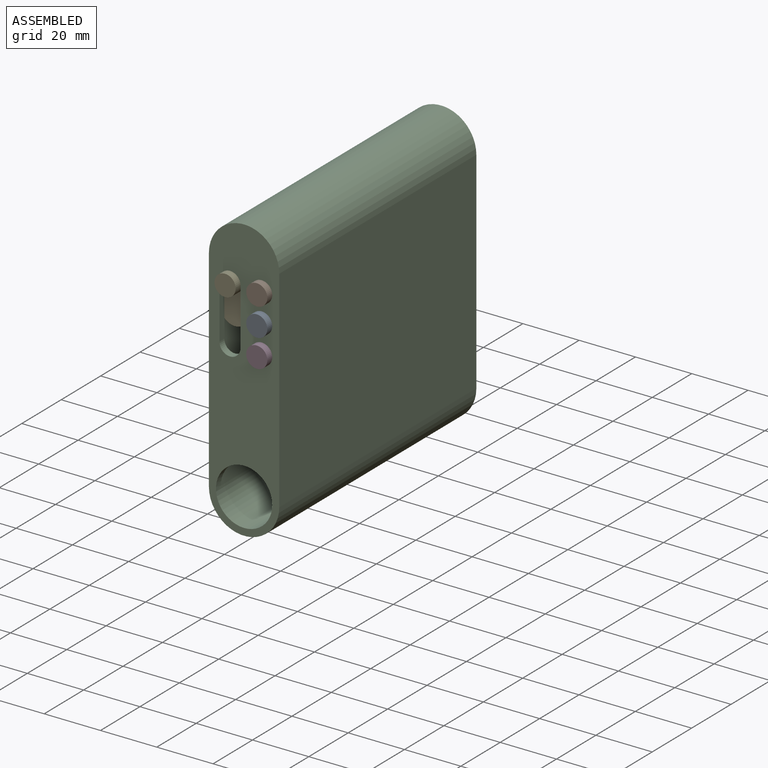
[diagram: assembled view]
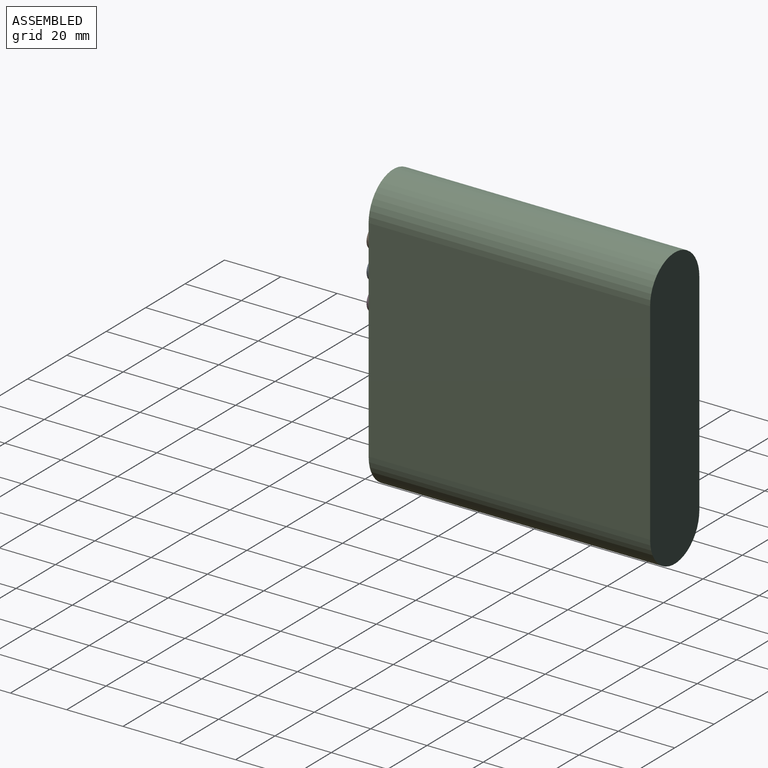
[diagram: assembled view, second angle]
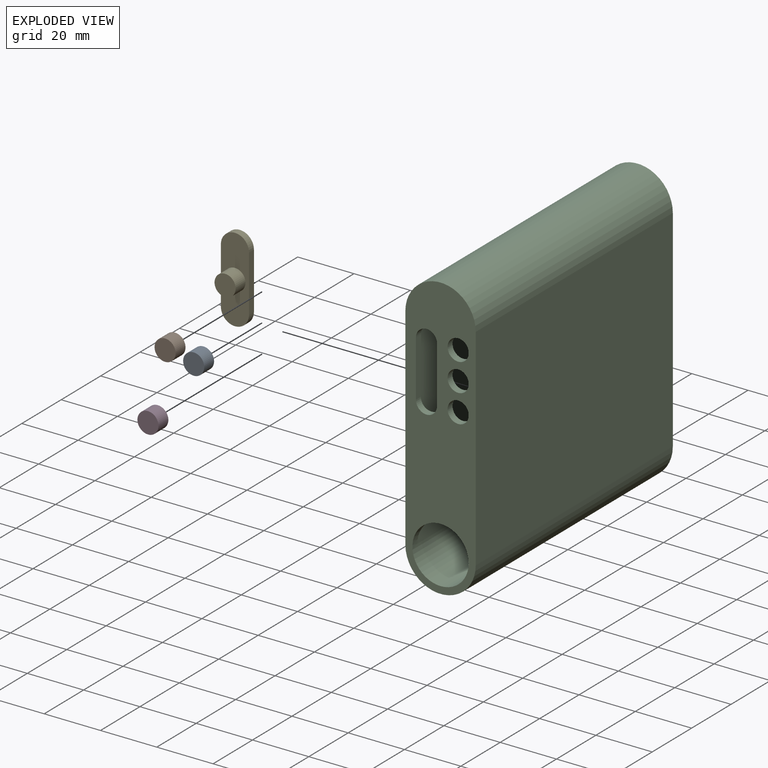
[diagram: exploded view]
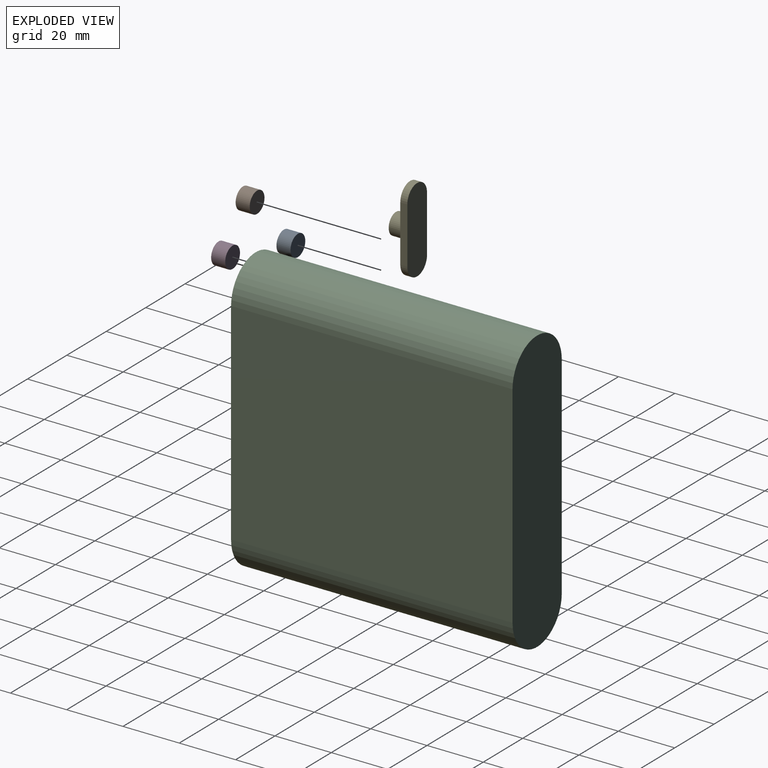
[diagram: exploded view, second angle]
ASSEMBLY  parts=5 mates=4
PART A: 3 faces, bbox 7.5x7.5x5 mm
  f0: cylinder r=3.75mm len=7.5mm, axis (0,0,-1), area 117.8mm2, adj f1,f2
  f1: plane 7.5x7.5mm, normal (0,0,1), area 44.2mm2, adj f0
  f2: plane 7.5x7.5mm, normal (0,0,-1), area 44.2mm2, adj f0
PART B: 3 faces, bbox 7.5x7.5x5 mm
  f0: cylinder r=3.75mm len=7.5mm, axis (0,0,-1), area 117.8mm2, adj f1,f2
  f1: plane 7.5x7.5mm, normal (0,0,1), area 44.2mm2, adj f0
  f2: plane 7.5x7.5mm, normal (0,0,-1), area 44.2mm2, adj f0
PART C: 19 faces, bbox 25x100x100 mm
  f0: plane 85x20mm, normal (0,1,0), area 1173.3mm2, adj f1,f2,f3,f4,f6,f7,f8,f9
  f1: cylinder r=10mm len=95mm, axis (0,1,0), area 2984.5mm2, adj f0,f2,f4,f5
  f2: plane 95x75mm, normal (1,0,0), area 7125mm2, adj f0,f1,f3,f5
  f3: cylinder r=10mm len=97.5mm, axis (0,1,0), area 3141.6mm2, adj f0,f2,f4,f5,f13
  f4: plane 95x75mm, normal (-1,0,0), area 7125mm2, adj f0,f1,f3,f5
  f5: plane 95x20mm, normal (0,-1,0), area 1814.2mm2, adj f1,f2,f3,f4
  f6: plane 20x2.5mm, normal (-1,0,0), area 50mm2, adj f0,f7,f9,f13
  f7: cylinder r=3.75mm len=7.5mm, axis (0,-1,0), area 29.5mm2, adj f0,f6,f8,f13
  f8: plane 20x2.5mm, normal (1,0,0), area 50mm2, adj f0,f7,f9,f13
  f9: cylinder r=3.75mm len=7.5mm, axis (0,-1,0), area 29.5mm2, adj f0,f6,f8,f13
  f10: cylinder r=3.75mm len=7.5mm, axis (0,-1,0), area 58.9mm2, adj f0,f13
  f11: cylinder r=3.75mm len=7.5mm, axis (0,-1,0), area 58.9mm2, adj f0,f13
  f12: cylinder r=3.75mm len=7.5mm, axis (0,-1,0), area 58.9mm2, adj f0,f13
  f13: plane 100x25mm, normal (0,-1,0), area 1725mm2, adj f3,f6,f7,f8,f9,f10,f11,f12
  f14: cylinder r=12.5mm len=100mm, axis (0,1,0), area 3927mm2, adj f13,f15,f17,f18
  f15: plane 100x75mm, normal (-1,0,0), area 7500mm2, adj f13,f14,f16,f18
  f16: cylinder r=12.5mm len=100mm, axis (0,1,0), area 3927mm2, adj f13,f15,f17,f18
  f17: plane 100x75mm, normal (1,0,0), area 7500mm2, adj f13,f14,f16,f18
  f18: plane 100x25mm, normal (0,1,0), area 2365.9mm2, adj f14,f15,f16,f17
PART D: 3 faces, bbox 7.5x7.5x5 mm
  f0: cylinder r=3.75mm len=7.5mm, axis (0,0,-1), area 117.8mm2, adj f1,f2
  f1: plane 7.5x7.5mm, normal (0,0,1), area 44.2mm2, adj f0
  f2: plane 7.5x7.5mm, normal (0,0,-1), area 44.2mm2, adj f0
PART E: 8 faces, bbox 30x10x7.5 mm
  f0: cylinder r=5mm len=10mm, axis (0,0,1), area 39.3mm2, adj f1,f3,f4,f5
  f1: plane 20x2.5mm, normal (0,1,0), area 50mm2, adj f0,f2,f4,f5
  f2: cylinder r=5mm len=10mm, axis (0,0,1), area 39.3mm2, adj f1,f3,f4,f5
  f3: plane 20x2.5mm, normal (0,-1,0), area 50mm2, adj f0,f2,f4,f5
  f4: plane 30x10mm, normal (0,0,-1), area 278.5mm2, adj f0,f1,f2,f3
  f5: plane 30x10mm, normal (0,0,1), area 234.4mm2, adj f0,f1,f2,f3,f6
  f6: cylinder r=3.75mm len=7.5mm, axis (0,0,-1), area 117.8mm2, adj f5,f7
  f7: plane 7.5x7.5mm, normal (0,0,1), area 44.2mm2, adj f6
PLACE A rot(axis=(1,0,0),90deg) t=(56.44,-47.5,-16.37)mm
PLACE B rot(axis=(1,0,0),90deg) t=(34.88,-47.5,-8.24)mm
PLACE C at identity fixed
PLACE D rot(axis=(1,0,0),90deg) t=(71.44,-47.5,-27.49)mm
PLACE E rot(axis=(0.58,0.58,-0.58),120deg) t=(-17.18,-47.5,-16.83)mm
MATE slider C.f10 <-> A.f0  axis (0,1,0) through (6.25,-47.5,20)mm
MATE slider D.f0 <-> C.f12  axis (0,1,0) through (6.25,-47.5,10)mm
MATE slider B.f0 <-> C.f11  axis (0,1,0) through (6.25,-47.5,30)mm
MATE pin_slot E.f6 <-> C.f7  axis (0,-1,0) through (-5,-47.5,30)mm
